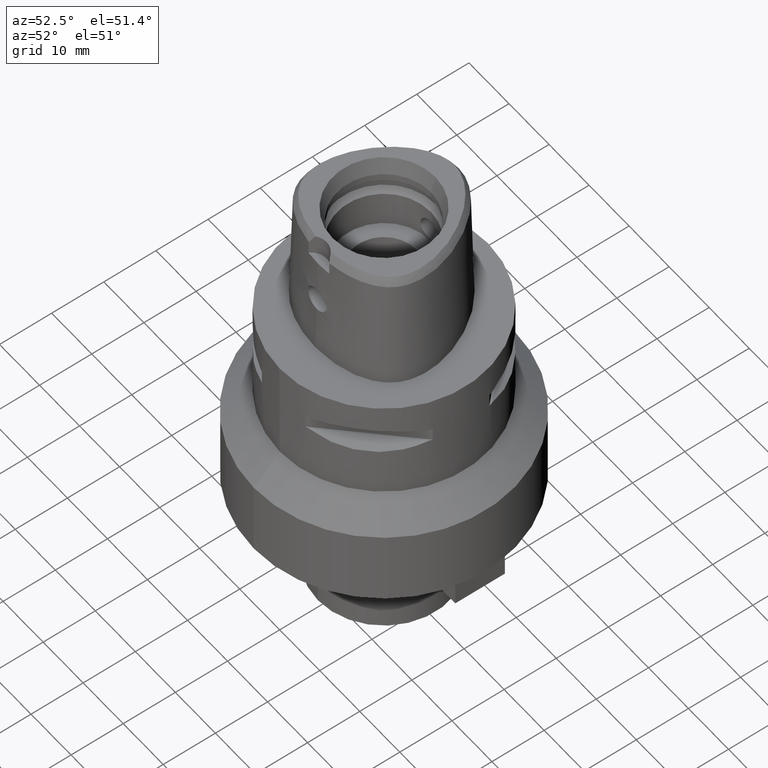
[diagram: clean part render]
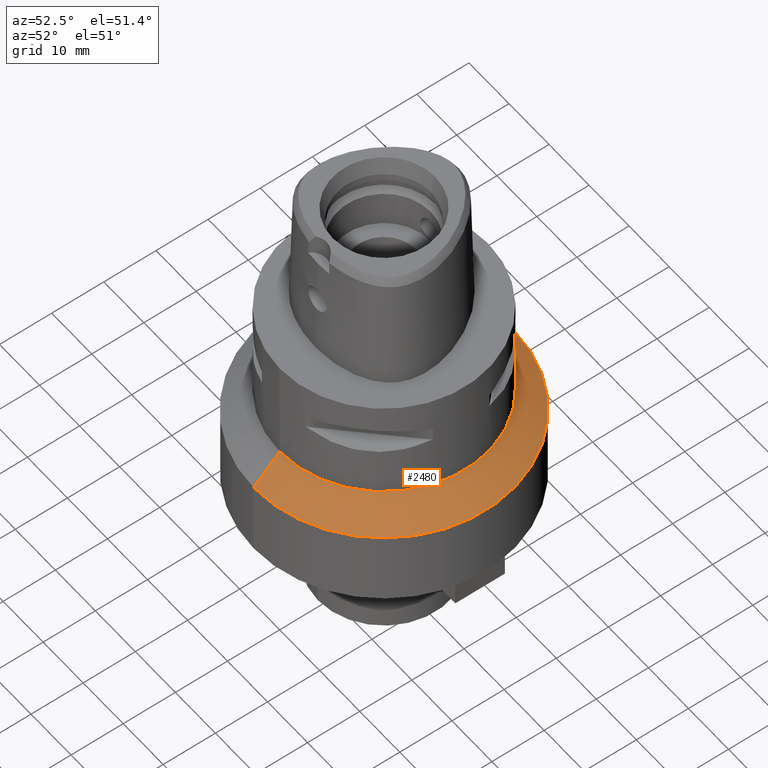
[diagram: same view with one face highlighted and labeled with its STEP entity id]
A machine part, auxiliary view. The second image highlights one B-rep face of the part: STEP entity #2480.
In plain terms, the highlighted conical surface has half-angle 45 deg.
Its self-contained STEP definition (entity closure, byte-faithful):
#490=DIRECTION('',(0.E0,7.071067811865E-1,-7.071067811865E-1));
#491=VECTOR('',#490,7.071067811865E0);
#492=CARTESIAN_POINT('',(0.E0,2.E1,-2.02E1));
#493=LINE('',#492,#491);
#497=CARTESIAN_POINT('',(0.E0,0.E0,-2.52E1));
#498=DIRECTION('',(0.E0,0.E0,-1.E0));
#499=DIRECTION('',(0.E0,1.E0,0.E0));
#500=AXIS2_PLACEMENT_3D('',#497,#498,#499);
#505=CARTESIAN_POINT('',(0.E0,0.E0,-2.02E1));
#506=DIRECTION('',(0.E0,0.E0,1.E0));
#507=DIRECTION('',(0.E0,-1.E0,0.E0));
#508=AXIS2_PLACEMENT_3D('',#505,#506,#507);
#521=DIRECTION('',(0.E0,-7.071067811865E-1,-7.071067811865E-1));
#522=VECTOR('',#521,7.071067811865E0);
#523=CARTESIAN_POINT('',(0.E0,-2.E1,-2.02E1));
#524=LINE('',#523,#522);
#1608=CARTESIAN_POINT('',(0.E0,2.E1,-2.02E1));
#1609=VERTEX_POINT('',#1608);
#1610=CARTESIAN_POINT('',(0.E0,-2.E1,-2.02E1));
#1611=VERTEX_POINT('',#1610);
#1664=CARTESIAN_POINT('',(0.E0,2.5E1,-2.52E1));
#1665=VERTEX_POINT('',#1664);
#1666=CARTESIAN_POINT('',(0.E0,-2.5E1,-2.52E1));
#1667=VERTEX_POINT('',#1666);
#2466=CARTESIAN_POINT('',(0.E0,0.E0,-2.27E1));
#2467=DIRECTION('',(0.E0,0.E0,-1.E0));
#2468=DIRECTION('',(0.E0,-1.E0,0.E0));
#2469=AXIS2_PLACEMENT_3D('',#2466,#2467,#2468);
#2470=CONICAL_SURFACE('',#2469,2.25E1,4.5E1);
#2472=ORIENTED_EDGE('',*,*,#2471,.T.);
#2474=ORIENTED_EDGE('',*,*,#2473,.T.);
#2476=ORIENTED_EDGE('',*,*,#2475,.F.);
#2477=ORIENTED_EDGE('',*,*,#2423,.T.);
#2478=EDGE_LOOP('',(#2472,#2474,#2476,#2477));
#2479=FACE_OUTER_BOUND('',#2478,.F.);
#501=CIRCLE('',#500,2.5E1);
#509=CIRCLE('',#508,2.E1);
#2423=EDGE_CURVE('',#1611,#1609,#509,.T.);
#2471=EDGE_CURVE('',#1609,#1665,#493,.T.);
#2473=EDGE_CURVE('',#1665,#1667,#501,.T.);
#2475=EDGE_CURVE('',#1611,#1667,#524,.T.);
#2480=ADVANCED_FACE('',(#2479),#2470,.T.);